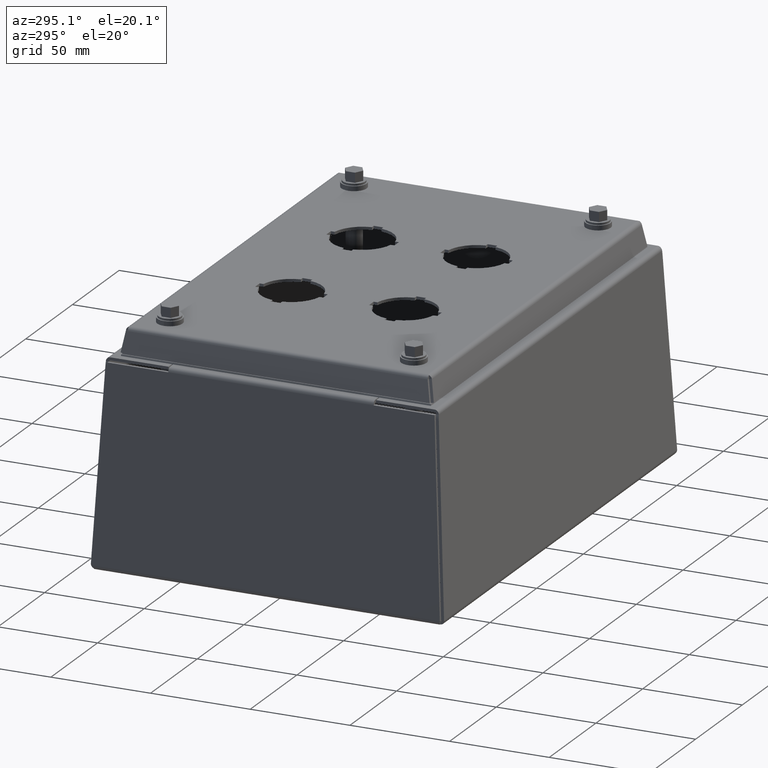
[diagram: clean part render]
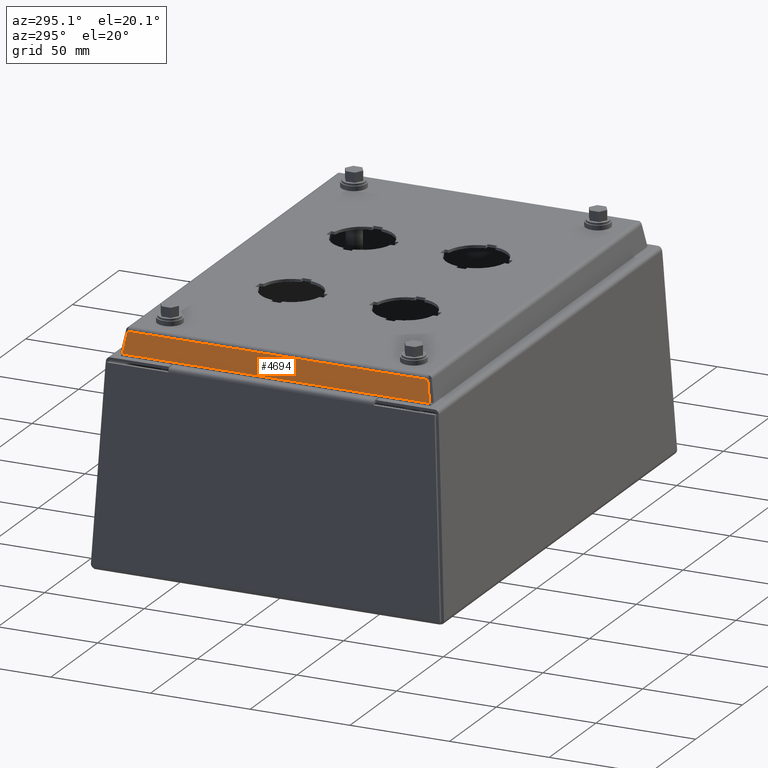
[diagram: same view with one face highlighted and labeled with its STEP entity id]
A machine part, auxiliary view. The second image highlights one B-rep face of the part: STEP entity #4694.
In plain terms, the highlighted planar face has unit normal (0.9848, 0, -0.1736).
Its self-contained STEP definition (entity closure, byte-faithful):
#148 = CARTESIAN_POINT ( 'NONE',  ( -4.559400220547165539, -3.036654823226840882, 4.042000000000001592 ) ) ;
#364 = CARTESIAN_POINT ( 'NONE',  ( -4.559400220547165539, -20.66740222216984080, 4.041999999999997151 ) ) ;
#1208 = CARTESIAN_POINT ( 'NONE',  ( -4.485530898477792405, 2.962785501157493950, 4.460933743279369423 ) ) ;
#1529 = CARTESIAN_POINT ( 'NONE',  ( -4.472999999999999865, -20.66740222216984080, 4.531999999999997364 ) ) ;
#1603 = FACE_OUTER_BOUND ( 'NONE', #14467, .T. ) ;
#1772 = CARTESIAN_POINT ( 'NONE',  ( -4.485530898477793293, -2.962785501157497059, 4.460933743279355213 ) ) ;
#2456 = LINE ( 'NONE', #7225, #14957 ) ;
#2465 = PLANE ( 'NONE',  #2744 ) ;
#2744 = AXIS2_PLACEMENT_3D ( 'NONE', #1529, #3948, #8473 ) ;
#2972 = EDGE_CURVE ( 'NONE', #10084, #9900, #8807, .T. ) ;
#3244 = ORIENTED_EDGE ( 'NONE', *, *, #2972, .F. ) ;
#3278 = EDGE_CURVE ( 'NONE', #10084, #4844, #2456, .T. ) ;
#3948 = DIRECTION ( 'NONE',  ( 0.9848077530122081313, 8.248433006319624057E-18, -0.1736481776669300259 ) ) ;
#4306 = VECTOR ( 'NONE', #4976, 39.37007874015748143 ) ;
#4647 = ORIENTED_EDGE ( 'NONE', *, *, #3278, .T. ) ;
#4694 = ADVANCED_FACE ( 'NONE', ( #1603 ), #2465, .F. ) ;
#4750 = VERTEX_POINT ( 'NONE', #5586 ) ;
#4844 = VERTEX_POINT ( 'NONE', #12481 ) ;
#4976 = DIRECTION ( 'NONE',  ( 0.1710878697460947173, 0.1710878697460338771, 0.9702875252478038171 ) ) ;
#5586 = CARTESIAN_POINT ( 'NONE',  ( -4.559400220547165539, -3.036654823226829780, 4.041999999999999815 ) ) ;
#5958 = VECTOR ( 'NONE', #11018, 39.37007874015748143 ) ;
#6221 = DIRECTION ( 'NONE',  ( 3.985759582605849855E-19, 1.000000000000000000, 1.247251165005549676E-16 ) ) ;
#7225 = CARTESIAN_POINT ( 'NONE',  ( -4.485530898477795070, 2.962785501157496171, 4.460933743279356989 ) ) ;
#8473 = DIRECTION ( 'NONE',  ( 0.1736481776669299981, -1.206041662501894663E-16, 0.9848077530122080203 ) ) ;
#8807 = LINE ( 'NONE', #14605, #5958 ) ;
#9015 = EDGE_CURVE ( 'NONE', #4750, #4844, #13489, .T. ) ;
#9900 = VERTEX_POINT ( 'NONE', #1772 ) ;
#10084 = VERTEX_POINT ( 'NONE', #1208 ) ;
#11018 = DIRECTION ( 'NONE',  ( -0.000000000000000000, -1.000000000000000000, -1.836970198721026976E-16 ) ) ;
#11786 = DIRECTION ( 'NONE',  ( -0.1710878697460943842, 0.1710878697460337661, -0.9702875252478038171 ) ) ;
#12481 = CARTESIAN_POINT ( 'NONE',  ( -4.559400220547165539, 3.036654823226854649, 4.041999999999998927 ) ) ;
#12699 = ORIENTED_EDGE ( 'NONE', *, *, #12909, .T. ) ;
#12909 = EDGE_CURVE ( 'NONE', #4750, #9900, #14523, .T. ) ;
#13489 = LINE ( 'NONE', #364, #15392 ) ;
#14467 = EDGE_LOOP ( 'NONE', ( #4647, #14648, #12699, #3244 ) ) ;
#14523 = LINE ( 'NONE', #148, #4306 ) ;
#14605 = CARTESIAN_POINT ( 'NONE',  ( -4.485530898477790629, 2.934337431718752054, 4.460933743279355213 ) ) ;
#14648 = ORIENTED_EDGE ( 'NONE', *, *, #9015, .F. ) ;
#14957 = VECTOR ( 'NONE', #11786, 39.37007874015748854 ) ;
#15392 = VECTOR ( 'NONE', #6221, 39.37007874015748143 ) ;